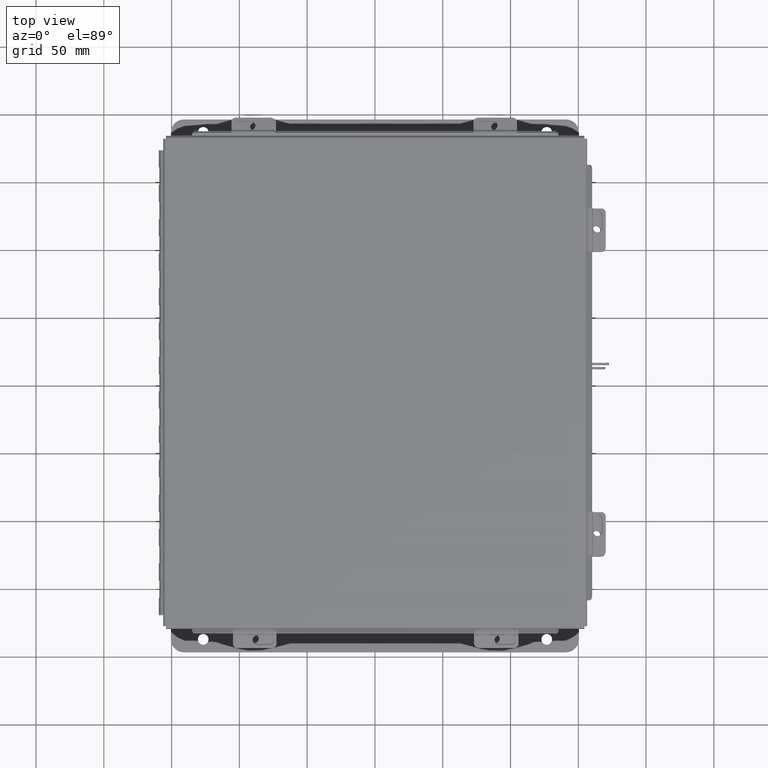
[diagram: clean part render]
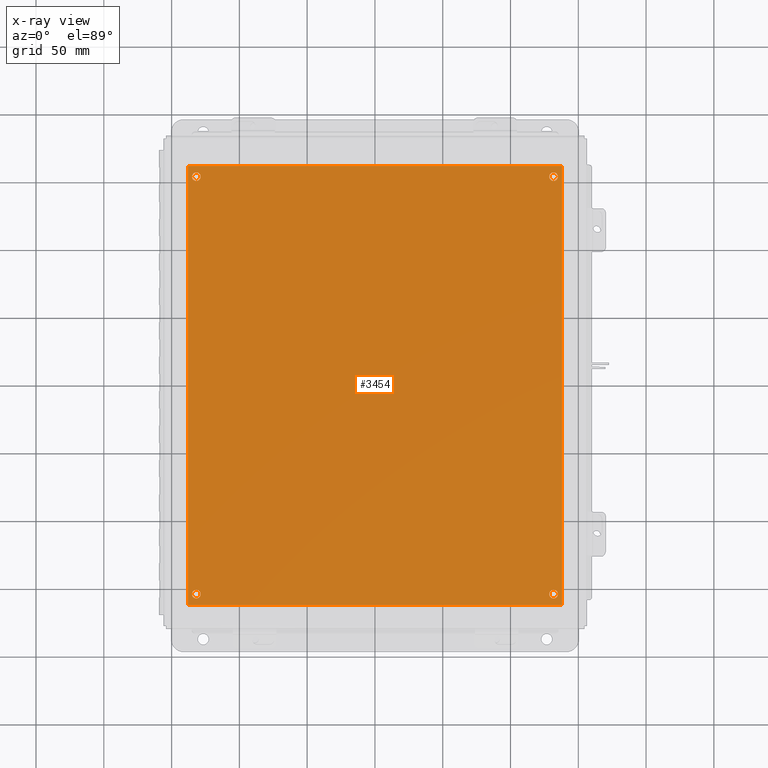
[diagram: x-ray — body ghosted, one internal face saturated and labeled with its STEP entity id]
A machine part, top view, then the same camera in x-ray: the body is ghosted and one INTERNAL B-rep face — a face not visible from any outside direction — is saturated and labeled: STEP entity #3454.
In plain terms, the highlighted planar face has unit normal (0, 0, -1).
Its self-contained STEP definition (entity closure, byte-faithful):
#244 = CARTESIAN_POINT ( 'NONE',  ( 0.0000000000000000000, 0.0000000000000000000, -0.07470000000000003000 ) ) ;
#415 = CARTESIAN_POINT ( 'NONE',  ( 10.62500000000000400, 0.3120000000000036600, -0.07470000000000003000 ) ) ;
#430 = CARTESIAN_POINT ( 'NONE',  ( 0.3750000000000020000, 0.3120000000000015000, -0.07470000000000003000 ) ) ;
#534 = AXIS2_PLACEMENT_3D ( 'NONE', #7630, #13729, #18337 ) ;
#723 = VERTEX_POINT ( 'NONE', #17569 ) ;
#1135 = CARTESIAN_POINT ( 'NONE',  ( 10.75000000000000400, 0.3120000000000036600, -0.07470000000000003000 ) ) ;
#1376 = CARTESIAN_POINT ( 'NONE',  ( 0.2499999999999998100, 12.43799999999999700, -0.07470000000000003000 ) ) ;
#1574 = DIRECTION ( 'NONE',  ( -0.0000000000000000000, -0.0000000000000000000, 1.000000000000000000 ) ) ;
#1652 = CARTESIAN_POINT ( 'NONE',  ( 0.1249999999999997900, 12.43799999999999700, -0.07470000000000003000 ) ) ;
#1788 = EDGE_CURVE ( 'NONE', #13812, #17646, #6294, .T. ) ;
#1888 = CIRCLE ( 'NONE', #17402, 0.1249999999999993500 ) ;
#1917 = DIRECTION ( 'NONE',  ( -1.000000000000000000, 0.0000000000000000000, 0.0000000000000000000 ) ) ;
#1999 = EDGE_LOOP ( 'NONE', ( #9721, #4084 ) ) ;
#2348 = EDGE_CURVE ( 'NONE', #15018, #7016, #9681, .T. ) ;
#2666 = CARTESIAN_POINT ( 'NONE',  ( 0.2500000000000020000, 0.3120000000000015000, -0.07470000000000003000 ) ) ;
#2705 = AXIS2_PLACEMENT_3D ( 'NONE', #12989, #4205, #14480 ) ;
#2874 = DIRECTION ( 'NONE',  ( -1.000000000000000000, 0.0000000000000000000, 0.0000000000000000000 ) ) ;
#3313 = LINE ( 'NONE', #244, #11547 ) ;
#3353 = CARTESIAN_POINT ( 'NONE',  ( 0.0000000000000000000, 12.75000000000000000, -0.07470000000000003000 ) ) ;
#3371 = CARTESIAN_POINT ( 'NONE',  ( 10.50000000000000200, 12.43799999999999900, -0.07470000000000003000 ) ) ;
#3454 = ADVANCED_FACE ( 'NONE', ( #16109, #15182, #3936, #11255, #7384 ), #7300, .T. ) ;
#3936 = FACE_BOUND ( 'NONE', #10224, .T. ) ;
#3967 = ORIENTED_EDGE ( 'NONE', *, *, #1788, .F. ) ;
#4003 = VERTEX_POINT ( 'NONE', #4637 ) ;
#4084 = ORIENTED_EDGE ( 'NONE', *, *, #2348, .T. ) ;
#4148 = DIRECTION ( 'NONE',  ( -1.000000000000000000, 0.0000000000000000000, 0.0000000000000000000 ) ) ;
#4186 = CARTESIAN_POINT ( 'NONE',  ( 10.87500000000000000, 12.75000000000000000, -0.07470000000000003000 ) ) ;
#4205 = DIRECTION ( 'NONE',  ( -0.0000000000000000000, -0.0000000000000000000, 1.000000000000000000 ) ) ;
#4462 = VECTOR ( 'NONE', #7741, 39.37007874015748100 ) ;
#4579 = AXIS2_PLACEMENT_3D ( 'NONE', #5244, #10076, #10021 ) ;
#4637 = CARTESIAN_POINT ( 'NONE',  ( 0.1250000000000019200, 0.3120000000000015000, -0.07470000000000003000 ) ) ;
#4997 = ORIENTED_EDGE ( 'NONE', *, *, #14475, .T. ) ;
#5082 = DIRECTION ( 'NONE',  ( -1.000000000000000000, -0.0000000000000000000, -0.0000000000000000000 ) ) ;
#5244 = CARTESIAN_POINT ( 'NONE',  ( 0.0000000000000000000, 0.0000000000000000000, -0.07470000000000003000 ) ) ;
#5247 = CARTESIAN_POINT ( 'NONE',  ( 10.87500000000000000, 0.0000000000000000000, -0.07470000000000003000 ) ) ;
#5467 = VECTOR ( 'NONE', #5082, 39.37007874015748100 ) ;
#5628 = CIRCLE ( 'NONE', #2705, 0.1249999999999993500 ) ;
#5639 = CIRCLE ( 'NONE', #10984, 0.1249999999999993500 ) ;
#5773 = CARTESIAN_POINT ( 'NONE',  ( 10.87500000000000000, 0.0000000000000000000, -0.07470000000000003000 ) ) ;
#5827 = EDGE_CURVE ( 'NONE', #11056, #6309, #18367, .T. ) ;
#6294 = LINE ( 'NONE', #5247, #13639 ) ;
#6309 = VERTEX_POINT ( 'NONE', #16861 ) ;
#6477 = AXIS2_PLACEMENT_3D ( 'NONE', #18798, #14456, #12669 ) ;
#6949 = ORIENTED_EDGE ( 'NONE', *, *, #15463, .F. ) ;
#7016 = VERTEX_POINT ( 'NONE', #1135 ) ;
#7131 = CARTESIAN_POINT ( 'NONE',  ( 10.75000000000000200, 12.43799999999999900, -0.07470000000000003000 ) ) ;
#7300 = PLANE ( 'NONE',  #4579 ) ;
#7355 = CARTESIAN_POINT ( 'NONE',  ( 0.2500000000000020000, 0.3120000000000015000, -0.07470000000000003000 ) ) ;
#7384 = FACE_OUTER_BOUND ( 'NONE', #14061, .T. ) ;
#7630 = CARTESIAN_POINT ( 'NONE',  ( 0.2499999999999998100, 12.43799999999999700, -0.07470000000000003000 ) ) ;
#7741 = DIRECTION ( 'NONE',  ( 1.000000000000000000, 0.0000000000000000000, 0.0000000000000000000 ) ) ;
#7958 = VERTEX_POINT ( 'NONE', #430 ) ;
#8012 = ORIENTED_EDGE ( 'NONE', *, *, #12663, .T. ) ;
#8033 = CARTESIAN_POINT ( 'NONE',  ( 10.50000000000000400, 0.3120000000000036600, -0.07470000000000003000 ) ) ;
#8230 = VERTEX_POINT ( 'NONE', #7131 ) ;
#8498 = VERTEX_POINT ( 'NONE', #3353 ) ;
#8792 = LINE ( 'NONE', #18000, #4462 ) ;
#8804 = DIRECTION ( 'NONE',  ( -1.000000000000000000, 0.0000000000000000000, 0.0000000000000000000 ) ) ;
#8824 = CIRCLE ( 'NONE', #16292, 0.1250000000000000600 ) ;
#8891 = ORIENTED_EDGE ( 'NONE', *, *, #14843, .T. ) ;
#9320 = LINE ( 'NONE', #12392, #5467 ) ;
#9681 = CIRCLE ( 'NONE', #6477, 0.1249999999999993500 ) ;
#9721 = ORIENTED_EDGE ( 'NONE', *, *, #13947, .T. ) ;
#9737 = AXIS2_PLACEMENT_3D ( 'NONE', #1376, #11643, #2874 ) ;
#10021 = DIRECTION ( 'NONE',  ( -1.000000000000000000, 0.0000000000000000000, -0.0000000000000000000 ) ) ;
#10076 = DIRECTION ( 'NONE',  ( 0.0000000000000000000, 0.0000000000000000000, -1.000000000000000000 ) ) ;
#10154 = EDGE_CURVE ( 'NONE', #17646, #8498, #9320, .T. ) ;
#10224 = EDGE_LOOP ( 'NONE', ( #8891, #8012 ) ) ;
#10344 = CARTESIAN_POINT ( 'NONE',  ( 10.62500000000000200, 12.43799999999999900, -0.07470000000000003000 ) ) ;
#10502 = VERTEX_POINT ( 'NONE', #3371 ) ;
#10519 = DIRECTION ( 'NONE',  ( -0.0000000000000000000, -1.000000000000000000, -0.0000000000000000000 ) ) ;
#10624 = ORIENTED_EDGE ( 'NONE', *, *, #5827, .T. ) ;
#10710 = DIRECTION ( 'NONE',  ( -0.0000000000000000000, -0.0000000000000000000, 1.000000000000000000 ) ) ;
#10751 = ORIENTED_EDGE ( 'NONE', *, *, #14690, .T. ) ;
#10984 = AXIS2_PLACEMENT_3D ( 'NONE', #10344, #1574, #11832 ) ;
#11056 = VERTEX_POINT ( 'NONE', #1652 ) ;
#11255 = FACE_BOUND ( 'NONE', #16823, .T. ) ;
#11457 = EDGE_LOOP ( 'NONE', ( #4997, #10751 ) ) ;
#11547 = VECTOR ( 'NONE', #10519, 39.37007874015748100 ) ;
#11560 = ORIENTED_EDGE ( 'NONE', *, *, #14436, .T. ) ;
#11643 = DIRECTION ( 'NONE',  ( -0.0000000000000000000, -0.0000000000000000000, 1.000000000000000000 ) ) ;
#11832 = DIRECTION ( 'NONE',  ( -1.000000000000000000, 0.0000000000000000000, 0.0000000000000000000 ) ) ;
#12392 = CARTESIAN_POINT ( 'NONE',  ( 0.0000000000000000000, 12.75000000000000000, -0.07470000000000003000 ) ) ;
#12663 = EDGE_CURVE ( 'NONE', #10502, #8230, #5628, .T. ) ;
#12669 = DIRECTION ( 'NONE',  ( -1.000000000000000000, 0.0000000000000000000, 0.0000000000000000000 ) ) ;
#12701 = AXIS2_PLACEMENT_3D ( 'NONE', #7355, #17638, #8804 ) ;
#12907 = DIRECTION ( 'NONE',  ( -0.0000000000000000000, -0.0000000000000000000, 1.000000000000000000 ) ) ;
#12989 = CARTESIAN_POINT ( 'NONE',  ( 10.62500000000000200, 12.43799999999999900, -0.07470000000000003000 ) ) ;
#13007 = EDGE_CURVE ( 'NONE', #723, #13812, #8792, .T. ) ;
#13581 = DIRECTION ( 'NONE',  ( 0.0000000000000000000, 1.000000000000000000, 0.0000000000000000000 ) ) ;
#13639 = VECTOR ( 'NONE', #13581, 39.37007874015748100 ) ;
#13729 = DIRECTION ( 'NONE',  ( -0.0000000000000000000, -0.0000000000000000000, 1.000000000000000000 ) ) ;
#13812 = VERTEX_POINT ( 'NONE', #5773 ) ;
#13846 = ORIENTED_EDGE ( 'NONE', *, *, #13007, .F. ) ;
#13947 = EDGE_CURVE ( 'NONE', #7016, #15018, #1888, .T. ) ;
#14061 = EDGE_LOOP ( 'NONE', ( #6949, #17770, #3967, #13846 ) ) ;
#14436 = EDGE_CURVE ( 'NONE', #6309, #11056, #17954, .T. ) ;
#14456 = DIRECTION ( 'NONE',  ( -0.0000000000000000000, -0.0000000000000000000, 1.000000000000000000 ) ) ;
#14475 = EDGE_CURVE ( 'NONE', #7958, #4003, #17043, .T. ) ;
#14480 = DIRECTION ( 'NONE',  ( -1.000000000000000000, 0.0000000000000000000, 0.0000000000000000000 ) ) ;
#14690 = EDGE_CURVE ( 'NONE', #4003, #7958, #8824, .T. ) ;
#14843 = EDGE_CURVE ( 'NONE', #8230, #10502, #5639, .T. ) ;
#15018 = VERTEX_POINT ( 'NONE', #8033 ) ;
#15182 = FACE_BOUND ( 'NONE', #1999, .T. ) ;
#15463 = EDGE_CURVE ( 'NONE', #8498, #723, #3313, .T. ) ;
#16109 = FACE_BOUND ( 'NONE', #11457, .T. ) ;
#16292 = AXIS2_PLACEMENT_3D ( 'NONE', #2666, #12907, #4148 ) ;
#16823 = EDGE_LOOP ( 'NONE', ( #11560, #10624 ) ) ;
#16861 = CARTESIAN_POINT ( 'NONE',  ( 0.3749999999999998300, 12.43799999999999700, -0.07470000000000003000 ) ) ;
#17043 = CIRCLE ( 'NONE', #12701, 0.1250000000000000600 ) ;
#17402 = AXIS2_PLACEMENT_3D ( 'NONE', #415, #10710, #1917 ) ;
#17569 = CARTESIAN_POINT ( 'NONE',  ( 0.0000000000000000000, 0.0000000000000000000, -0.07470000000000003000 ) ) ;
#17638 = DIRECTION ( 'NONE',  ( -0.0000000000000000000, -0.0000000000000000000, 1.000000000000000000 ) ) ;
#17646 = VERTEX_POINT ( 'NONE', #4186 ) ;
#17770 = ORIENTED_EDGE ( 'NONE', *, *, #10154, .F. ) ;
#17954 = CIRCLE ( 'NONE', #9737, 0.1250000000000000000 ) ;
#18000 = CARTESIAN_POINT ( 'NONE',  ( 0.0000000000000000000, 0.0000000000000000000, -0.07470000000000003000 ) ) ;
#18337 = DIRECTION ( 'NONE',  ( -1.000000000000000000, 0.0000000000000000000, 0.0000000000000000000 ) ) ;
#18367 = CIRCLE ( 'NONE', #534, 0.1250000000000000000 ) ;
#18798 = CARTESIAN_POINT ( 'NONE',  ( 10.62500000000000400, 0.3120000000000036600, -0.07470000000000003000 ) ) ;